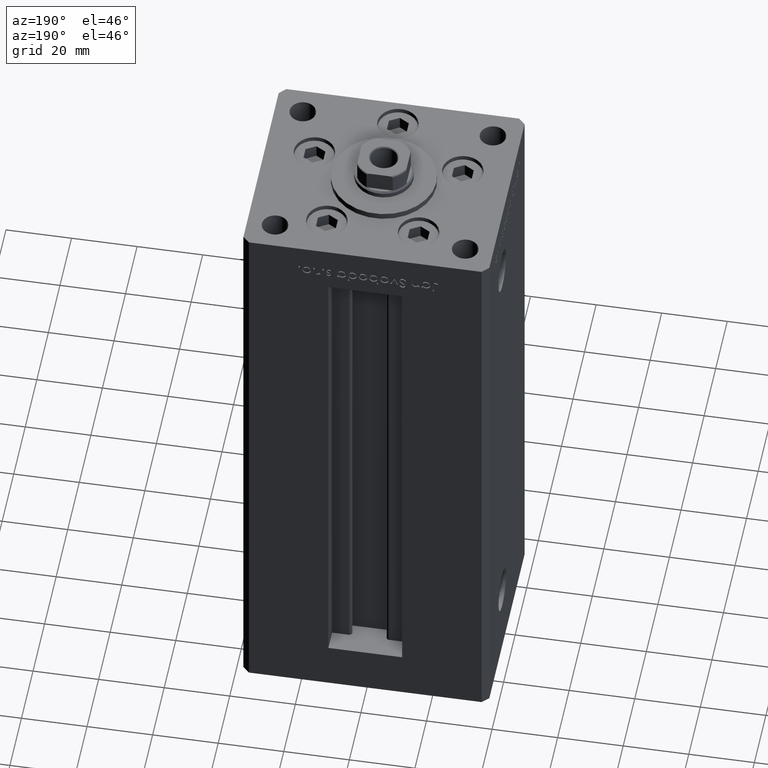
[diagram: clean part render]
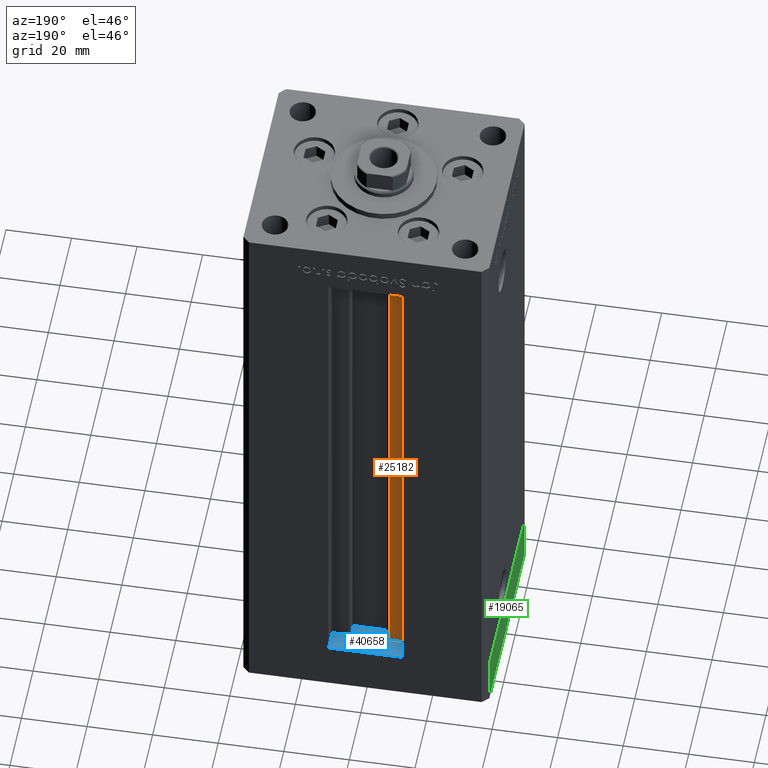
[diagram: same view with three faces highlighted in distinct colors, each labeled with its STEP entity id]
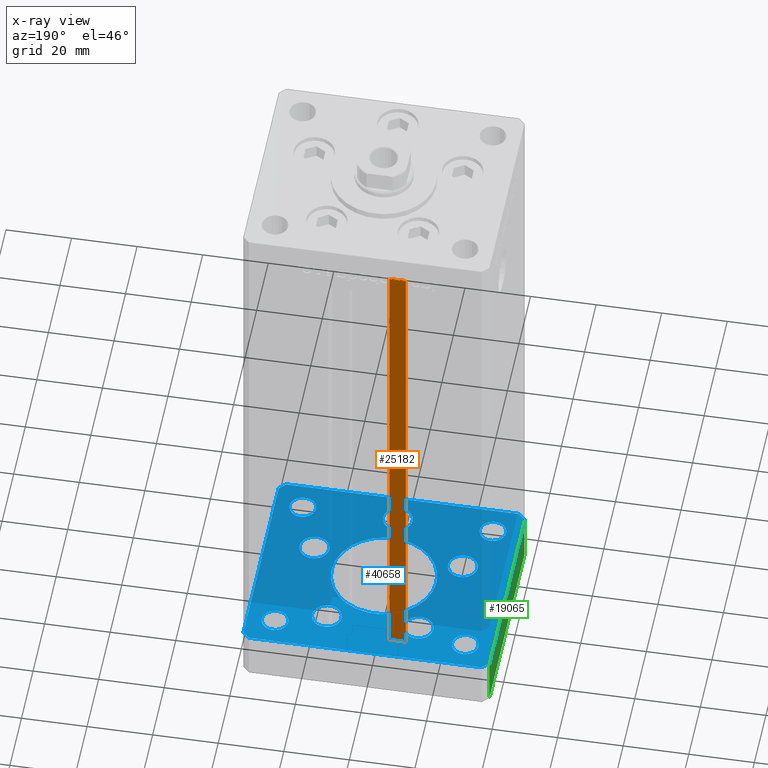
[diagram: x-ray of the same camera — body ghosted, the three highlighted faces saturated]
A machine part, auxiliary view with three faces highlighted in distinct colors.
The next image is the same camera in x-ray (body ghosted, the three faces saturated) — at least one of them is partly hidden behind the body in this view.
Their STEP definitions:

[orange] entity #25182 — the highlighted planar face has unit normal (0, -1, 0).
#5106 = EDGE_LOOP ( 'NONE', ( #14777, #24725, #35693, #45354 ) ) ;
#5426 = DIRECTION ( 'NONE',  ( -0.000000000000000000, -0.000000000000000000, 1.000000000000000000 ) ) ;
#5840 = CARTESIAN_POINT ( 'NONE',  ( -6.183333333334001480, 25.99999999999999289, 0.000000000000000000 ) ) ;
#6343 = DIRECTION ( 'NONE',  ( 0.000000000000000000, 0.000000000000000000, -1.000000000000000000 ) ) ;
#7485 = EDGE_CURVE ( 'NONE', #26500, #43193, #49454, .T. ) ;
#9036 = DIRECTION ( 'NONE',  ( 1.000000000000000000, -0.000000000000000000, -0.000000000000000000 ) ) ;
#9196 = AXIS2_PLACEMENT_3D ( 'NONE', #25354, #34048, #6343 ) ;
#13466 = LINE ( 'NONE', #13727, #15814 ) ;
#13727 = CARTESIAN_POINT ( 'NONE',  ( -11.25000000000000178, 25.99999999999999289, 0.000000000000000000 ) ) ;
#14258 = PLANE ( 'NONE',  #9196 ) ;
#14777 = ORIENTED_EDGE ( 'NONE', *, *, #7485, .F. ) ;
#15207 = VECTOR ( 'NONE', #29263, 1000.000000000000000 ) ;
#15814 = VECTOR ( 'NONE', #29812, 1000.000000000000000 ) ;
#17285 = EDGE_CURVE ( 'NONE', #45695, #26500, #49361, .T. ) ;
#21149 = EDGE_CURVE ( 'NONE', #45695, #21356, #13466, .T. ) ;
#21356 = VERTEX_POINT ( 'NONE', #44806 ) ;
#24725 = ORIENTED_EDGE ( 'NONE', *, *, #17285, .F. ) ;
#25182 = ADVANCED_FACE ( 'NONE', ( #50369 ), #14258, .F. ) ;
#25354 = CARTESIAN_POINT ( 'NONE',  ( -6.183333333334001480, 25.99999999999999289, 0.000000000000000000 ) ) ;
#26500 = VERTEX_POINT ( 'NONE', #42934 ) ;
#29263 = DIRECTION ( 'NONE',  ( -1.000000000000000000, 0.000000000000000000, 0.000000000000000000 ) ) ;
#29513 = CARTESIAN_POINT ( 'NONE',  ( 0.000000000000000000, 25.99999999999999289, 156.0000000000000000 ) ) ;
#29812 = DIRECTION ( 'NONE',  ( -0.000000000000000000, -0.000000000000000000, 1.000000000000000000 ) ) ;
#30022 = LINE ( 'NONE', #29513, #15207 ) ;
#33237 = CARTESIAN_POINT ( 'NONE',  ( -6.183333333334001480, 25.99999999999999289, 156.0000000000000000 ) ) ;
#34048 = DIRECTION ( 'NONE',  ( 0.000000000000000000, -1.000000000000000000, -0.000000000000000000 ) ) ;
#35693 = ORIENTED_EDGE ( 'NONE', *, *, #21149, .T. ) ;
#39975 = VECTOR ( 'NONE', #5426, 1000.000000000000000 ) ;
#41789 = VECTOR ( 'NONE', #9036, 1000.000000000000000 ) ;
#42391 = EDGE_CURVE ( 'NONE', #43193, #21356, #30022, .T. ) ;
#42934 = CARTESIAN_POINT ( 'NONE',  ( -6.183333333334001480, 25.99999999999999289, 0.000000000000000000 ) ) ;
#43193 = VERTEX_POINT ( 'NONE', #33237 ) ;
#44806 = CARTESIAN_POINT ( 'NONE',  ( -11.25000000000000178, 25.99999999999999289, 156.0000000000000000 ) ) ;
#45006 = CARTESIAN_POINT ( 'NONE',  ( -6.183333333334001480, 25.99999999999999289, 0.000000000000000000 ) ) ;
#45354 = ORIENTED_EDGE ( 'NONE', *, *, #42391, .F. ) ;
#45695 = VERTEX_POINT ( 'NONE', #47043 ) ;
#47043 = CARTESIAN_POINT ( 'NONE',  ( -11.25000000000000178, 25.99999999999999289, 0.000000000000000000 ) ) ;
#49361 = LINE ( 'NONE', #5840, #41789 ) ;
#49454 = LINE ( 'NONE', #45006, #39975 ) ;
#50369 = FACE_OUTER_BOUND ( 'NONE', #5106, .T. ) ;

[blue] entity #40658 — the highlighted planar face has unit normal (0, 0, -1).
#276 = EDGE_CURVE ( 'NONE', #46575, #9885, #45403, .T. ) ;
#286 = EDGE_CURVE ( 'NONE', #10816, #49239, #37813, .T. ) ;
#456 = DIRECTION ( 'NONE',  ( 0.000000000000000000, 0.000000000000000000, 1.000000000000000000 ) ) ;
#1019 = EDGE_CURVE ( 'NONE', #20562, #4074, #32792, .T. ) ;
#1669 = LINE ( 'NONE', #5895, #37985 ) ;
#1836 = EDGE_CURVE ( 'NONE', #51229, #4785, #6071, .T. ) ;
#2183 = CARTESIAN_POINT ( 'NONE',  ( -4.499999999999999112, -24.00000000000000000, -15.00000000000000000 ) ) ;
#2279 = CARTESIAN_POINT ( 'NONE',  ( -22.62741699796951877, -8.000000000000005329, -15.00000000000000000 ) ) ;
#2450 = DIRECTION ( 'NONE',  ( -1.478780668045802821E-15, 1.000000000000000000, 0.000000000000000000 ) ) ;
#2900 = CIRCLE ( 'NONE', #44208, 4.499999999999997335 ) ;
#2956 = EDGE_CURVE ( 'NONE', #46619, #35711, #40126, .T. ) ;
#3077 = DIRECTION ( 'NONE',  ( -0.000000000000000000, -0.000000000000000000, -1.000000000000000000 ) ) ;
#3419 = EDGE_LOOP ( 'NONE', ( #6296, #50874 ) ) ;
#3464 = CIRCLE ( 'NONE', #34644, 4.000000000000003553 ) ;
#3857 = CARTESIAN_POINT ( 'NONE',  ( 13.99106857963322348, 19.50000000000000000, -15.00000000000000000 ) ) ;
#4074 = VERTEX_POINT ( 'NONE', #2183 ) ;
#4252 = ORIENTED_EDGE ( 'NONE', *, *, #46514, .T. ) ;
#4703 = CARTESIAN_POINT ( 'NONE',  ( 2.939152317953647500E-15, -24.00000000000000000, -15.00000000000000000 ) ) ;
#4785 = VERTEX_POINT ( 'NONE', #35226 ) ;
#5116 = AXIS2_PLACEMENT_3D ( 'NONE', #28467, #36645, #12123 ) ;
#5215 = CARTESIAN_POINT ( 'NONE',  ( 33.00000000000001421, -23.99999999999999289, -15.00000000000000000 ) ) ;
#5248 = DIRECTION ( 'NONE',  ( 0.7071067811865474617, -0.7071067811865474617, 0.000000000000000000 ) ) ;
#5583 = DIRECTION ( 'NONE',  ( 0.000000000000000000, -0.000000000000000000, -1.000000000000000000 ) ) ;
#5734 = DIRECTION ( 'NONE',  ( 0.000000000000000000, -0.000000000000000000, -1.000000000000000000 ) ) ;
#5812 = EDGE_LOOP ( 'NONE', ( #11159, #7237 ) ) ;
#5819 = EDGE_CURVE ( 'NONE', #19884, #30599, #45443, .T. ) ;
#5895 = CARTESIAN_POINT ( 'NONE',  ( 37.50000000000001421, -30.50000000000000711, -15.00000000000000000 ) ) ;
#6071 = LINE ( 'NONE', #29111, #49629 ) ;
#6254 = EDGE_CURVE ( 'NONE', #32983, #33681, #22936, .T. ) ;
#6296 = ORIENTED_EDGE ( 'NONE', *, *, #276, .F. ) ;
#6477 = ORIENTED_EDGE ( 'NONE', *, *, #43833, .F. ) ;
#6693 = CIRCLE ( 'NONE', #21877, 4.500000000000000888 ) ;
#6857 = VERTEX_POINT ( 'NONE', #19043 ) ;
#6898 = VECTOR ( 'NONE', #14416, 999.9999999999998863 ) ;
#6981 = FACE_BOUND ( 'NONE', #14599, .T. ) ;
#7030 = DIRECTION ( 'NONE',  ( 0.000000000000000000, 0.000000000000000000, 1.000000000000000000 ) ) ;
#7237 = ORIENTED_EDGE ( 'NONE', *, *, #32230, .F. ) ;
#7311 = VERTEX_POINT ( 'NONE', #8675 ) ;
#7318 = CARTESIAN_POINT ( 'NONE',  ( 29.00000000000001066, -23.99999999999999289, -15.00000000000000000 ) ) ;
#7524 = CARTESIAN_POINT ( 'NONE',  ( -35.50000000000002842, 32.49999999999999289, -15.00000000000000000 ) ) ;
#7712 = CARTESIAN_POINT ( 'NONE',  ( 18.49106857963322881, 19.50000000000000000, -15.00000000000000000 ) ) ;
#7759 = CIRCLE ( 'NONE', #10281, 3.999999999999996447 ) ;
#8069 = DIRECTION ( 'NONE',  ( 1.000000000000000000, 9.773090005503140331E-17, 0.000000000000000000 ) ) ;
#8079 = EDGE_CURVE ( 'NONE', #40268, #24592, #2900, .T. ) ;
#8395 = DIRECTION ( 'NONE',  ( 0.000000000000000000, -0.000000000000000000, -1.000000000000000000 ) ) ;
#8495 = EDGE_LOOP ( 'NONE', ( #17650, #50814 ) ) ;
#8520 = EDGE_CURVE ( 'NONE', #46261, #6857, #31593, .T. ) ;
#8544 = AXIS2_PLACEMENT_3D ( 'NONE', #7318, #19714, #15497 ) ;
#8675 = CARTESIAN_POINT ( 'NONE',  ( 18.12741699796951877, -8.000000000000000000, -15.00000000000000000 ) ) ;
#8922 = DIRECTION ( 'NONE',  ( 1.000000000000000000, 0.000000000000000000, 0.000000000000000000 ) ) ;
#9151 = CARTESIAN_POINT ( 'NONE',  ( 27.12741699796952233, -8.000000000000000000, -15.00000000000000000 ) ) ;
#9885 = VERTEX_POINT ( 'NONE', #15253 ) ;
#10083 = CIRCLE ( 'NONE', #42120, 4.499999999999999112 ) ;
#10281 = AXIS2_PLACEMENT_3D ( 'NONE', #15496, #28152, #35805 ) ;
#10816 = VERTEX_POINT ( 'NONE', #39576 ) ;
#11009 = EDGE_CURVE ( 'NONE', #14799, #26779, #45950, .T. ) ;
#11159 = ORIENTED_EDGE ( 'NONE', *, *, #39449, .F. ) ;
#11360 = ORIENTED_EDGE ( 'NONE', *, *, #12221, .F. ) ;
#11664 = CARTESIAN_POINT ( 'NONE',  ( -35.49999999999998579, -32.50000000000001421, -15.00000000000000000 ) ) ;
#11670 = ORIENTED_EDGE ( 'NONE', *, *, #5819, .F. ) ;
#11695 = AXIS2_PLACEMENT_3D ( 'NONE', #32922, #456, #16570 ) ;
#11709 = FACE_BOUND ( 'NONE', #47471, .T. ) ;
#12123 = DIRECTION ( 'NONE',  ( -1.000000000000000000, 0.000000000000000000, 0.000000000000000000 ) ) ;
#12221 = EDGE_CURVE ( 'NONE', #6857, #46261, #33379, .T. ) ;
#12327 = ORIENTED_EDGE ( 'NONE', *, *, #1836, .F. ) ;
#12772 = ORIENTED_EDGE ( 'NONE', *, *, #24463, .F. ) ;
#12907 = CARTESIAN_POINT ( 'NONE',  ( -37.49999999999998579, -30.50000000000001421, -15.00000000000000000 ) ) ;
#13104 = VERTEX_POINT ( 'NONE', #9151 ) ;
#13778 = CARTESIAN_POINT ( 'NONE',  ( 37.49999999999992184, 30.50000000000001066, -15.00000000000000000 ) ) ;
#14394 = ORIENTED_EDGE ( 'NONE', *, *, #38030, .F. ) ;
#14395 = CARTESIAN_POINT ( 'NONE',  ( -33.00000000000000711, 24.00000000000000711, -15.00000000000000000 ) ) ;
#14416 = DIRECTION ( 'NONE',  ( -0.7071067811865482389, 0.7071067811865469066, 0.000000000000000000 ) ) ;
#14426 = DIRECTION ( 'NONE',  ( 1.000000000000000000, 0.000000000000000000, 0.000000000000000000 ) ) ;
#14463 = CARTESIAN_POINT ( 'NONE',  ( 22.62741699796951877, -8.000000000000000000, -15.00000000000000000 ) ) ;
#14599 = EDGE_LOOP ( 'NONE', ( #44219, #32704 ) ) ;
#14616 = CARTESIAN_POINT ( 'NONE',  ( -35.50000000000002842, 32.49999999999999289, -15.00000000000000000 ) ) ;
#14799 = VERTEX_POINT ( 'NONE', #41094 ) ;
#14871 = DIRECTION ( 'NONE',  ( -0.7071067811865426878, -0.7071067811865524577, 0.000000000000000000 ) ) ;
#14887 = FACE_OUTER_BOUND ( 'NONE', #50175, .T. ) ;
#14937 = CARTESIAN_POINT ( 'NONE',  ( -29.00000000000001066, 24.00000000000000711, -15.00000000000000000 ) ) ;
#15253 = CARTESIAN_POINT ( 'NONE',  ( -16.00000000000000000, 1.959434878635764737E-15, -15.00000000000000000 ) ) ;
#15488 = EDGE_CURVE ( 'NONE', #9885, #46575, #22521, .T. ) ;
#15496 = CARTESIAN_POINT ( 'NONE',  ( -29.00000000000001066, 24.00000000000000711, -15.00000000000000000 ) ) ;
#15497 = DIRECTION ( 'NONE',  ( -1.000000000000000000, 0.000000000000000000, 0.000000000000000000 ) ) ;
#15754 = CARTESIAN_POINT ( 'NONE',  ( 35.49999999999992184, 32.50000000000000711, -15.00000000000000000 ) ) ;
#16430 = EDGE_CURVE ( 'NONE', #24592, #40268, #48522, .T. ) ;
#16437 = AXIS2_PLACEMENT_3D ( 'NONE', #33040, #5583, #38008 ) ;
#16532 = ORIENTED_EDGE ( 'NONE', *, *, #34823, .F. ) ;
#16533 = AXIS2_PLACEMENT_3D ( 'NONE', #42931, #29775, #25807 ) ;
#16570 = DIRECTION ( 'NONE',  ( 1.000000000000000000, 0.000000000000000000, 0.000000000000000000 ) ) ;
#17053 = EDGE_CURVE ( 'NONE', #7311, #13104, #39252, .T. ) ;
#17114 = CARTESIAN_POINT ( 'NONE',  ( 0.000000000000000000, 0.000000000000000000, -15.00000000000000000 ) ) ;
#17650 = ORIENTED_EDGE ( 'NONE', *, *, #16430, .F. ) ;
#17884 = CARTESIAN_POINT ( 'NONE',  ( -37.49999999999998579, -30.50000000000001421, -15.00000000000000000 ) ) ;
#18853 = FACE_BOUND ( 'NONE', #3419, .T. ) ;
#19043 = CARTESIAN_POINT ( 'NONE',  ( 9.491068579633218150, 19.50000000000000000, -15.00000000000000000 ) ) ;
#19254 = VERTEX_POINT ( 'NONE', #13778 ) ;
#19498 = EDGE_LOOP ( 'NONE', ( #37532, #30746 ) ) ;
#19553 = AXIS2_PLACEMENT_3D ( 'NONE', #28772, #41684, #44866 ) ;
#19714 = DIRECTION ( 'NONE',  ( -0.000000000000000000, -0.000000000000000000, -1.000000000000000000 ) ) ;
#19845 = CARTESIAN_POINT ( 'NONE',  ( 29.00000000000001066, -23.99999999999999289, -15.00000000000000000 ) ) ;
#19884 = VERTEX_POINT ( 'NONE', #51766 ) ;
#20222 = DIRECTION ( 'NONE',  ( 0.000000000000000000, -0.000000000000000000, -1.000000000000000000 ) ) ;
#20234 = CARTESIAN_POINT ( 'NONE',  ( 16.00000000000000000, 0.000000000000000000, -15.00000000000000000 ) ) ;
#20562 = VERTEX_POINT ( 'NONE', #44531 ) ;
#21079 = LINE ( 'NONE', #12907, #29607 ) ;
#21803 = VECTOR ( 'NONE', #14871, 1000.000000000000000 ) ;
#21877 = AXIS2_PLACEMENT_3D ( 'NONE', #14463, #35551, #51610 ) ;
#21951 = CIRCLE ( 'NONE', #5116, 3.999999999999996447 ) ;
#22084 = DIRECTION ( 'NONE',  ( 1.000000000000000000, 0.000000000000000000, 0.000000000000000000 ) ) ;
#22521 = CIRCLE ( 'NONE', #36833, 16.00000000000000000 ) ;
#22615 = DIRECTION ( 'NONE',  ( 0.000000000000000000, -0.000000000000000000, -1.000000000000000000 ) ) ;
#22936 = CIRCLE ( 'NONE', #19553, 4.499999999999999112 ) ;
#23133 = CARTESIAN_POINT ( 'NONE',  ( -29.00000000000001066, -23.99999999999999289, -15.00000000000000000 ) ) ;
#23323 = FACE_BOUND ( 'NONE', #41918, .T. ) ;
#23367 = LINE ( 'NONE', #51295, #6898 ) ;
#23625 = LINE ( 'NONE', #36286, #36360 ) ;
#23705 = CIRCLE ( 'NONE', #8544, 4.000000000000003553 ) ;
#23841 = FACE_BOUND ( 'NONE', #27367, .T. ) ;
#23909 = DIRECTION ( 'NONE',  ( 1.000000000000000000, 0.000000000000000000, 0.000000000000000000 ) ) ;
#23997 = VERTEX_POINT ( 'NONE', #41612 ) ;
#24289 = ORIENTED_EDGE ( 'NONE', *, *, #2956, .F. ) ;
#24293 = CARTESIAN_POINT ( 'NONE',  ( -18.49106857963322526, 19.49999999999999645, -15.00000000000000000 ) ) ;
#24463 = EDGE_CURVE ( 'NONE', #35711, #19884, #51502, .T. ) ;
#24592 = VERTEX_POINT ( 'NONE', #45337 ) ;
#24836 = DIRECTION ( 'NONE',  ( 1.000000000000000000, 0.000000000000000000, 0.000000000000000000 ) ) ;
#25405 = ORIENTED_EDGE ( 'NONE', *, *, #41745, .F. ) ;
#25457 = CIRCLE ( 'NONE', #40635, 4.500000000000001776 ) ;
#25646 = CARTESIAN_POINT ( 'NONE',  ( -37.50000000000001421, 30.49999999999998579, -15.00000000000000000 ) ) ;
#25807 = DIRECTION ( 'NONE',  ( 1.000000000000000000, 0.000000000000000000, 0.000000000000000000 ) ) ;
#26313 = DIRECTION ( 'NONE',  ( 1.000000000000000000, 0.000000000000000000, 0.000000000000000000 ) ) ;
#26479 = EDGE_CURVE ( 'NONE', #13104, #7311, #6693, .T. ) ;
#26779 = VERTEX_POINT ( 'NONE', #14395 ) ;
#26882 = DIRECTION ( 'NONE',  ( 0.7071067811865487940, 0.7071067811865463515, 0.000000000000000000 ) ) ;
#27010 = FACE_BOUND ( 'NONE', #19498, .T. ) ;
#27281 = FACE_BOUND ( 'NONE', #41536, .T. ) ;
#27367 = EDGE_LOOP ( 'NONE', ( #42848, #4252 ) ) ;
#27388 = EDGE_CURVE ( 'NONE', #33681, #32983, #10083, .T. ) ;
#27597 = CARTESIAN_POINT ( 'NONE',  ( -9.491068579633228808, 19.49999999999999645, -15.00000000000000000 ) ) ;
#28152 = DIRECTION ( 'NONE',  ( 0.000000000000000000, 0.000000000000000000, 1.000000000000000000 ) ) ;
#28190 = DIRECTION ( 'NONE',  ( 1.000000000000000000, 0.000000000000000000, 0.000000000000000000 ) ) ;
#28317 = AXIS2_PLACEMENT_3D ( 'NONE', #14937, #7030, #22084 ) ;
#28457 = DIRECTION ( 'NONE',  ( 0.000000000000000000, -0.000000000000000000, -1.000000000000000000 ) ) ;
#28467 = CARTESIAN_POINT ( 'NONE',  ( -29.00000000000001066, -23.99999999999999289, -15.00000000000000000 ) ) ;
#28610 = VERTEX_POINT ( 'NONE', #51912 ) ;
#28772 = CARTESIAN_POINT ( 'NONE',  ( -13.99106857963322703, 19.49999999999999645, -15.00000000000000000 ) ) ;
#28806 = CARTESIAN_POINT ( 'NONE',  ( 2.939152317953647500E-15, -24.00000000000000000, -15.00000000000000000 ) ) ;
#29111 = CARTESIAN_POINT ( 'NONE',  ( 35.50000000000000711, -32.50000000000000711, -15.00000000000000000 ) ) ;
#29508 = CARTESIAN_POINT ( 'NONE',  ( -33.00000000000000711, -23.99999999999999289, -15.00000000000000000 ) ) ;
#29607 = VECTOR ( 'NONE', #5248, 1000.000000000000114 ) ;
#29775 = DIRECTION ( 'NONE',  ( 0.000000000000000000, -0.000000000000000000, -1.000000000000000000 ) ) ;
#29976 = ORIENTED_EDGE ( 'NONE', *, *, #1019, .F. ) ;
#30297 = DIRECTION ( 'NONE',  ( 1.000000000000000000, 0.000000000000000000, 0.000000000000000000 ) ) ;
#30565 = CARTESIAN_POINT ( 'NONE',  ( 29.00000000000001066, 24.00000000000000711, -15.00000000000000000 ) ) ;
#30599 = VERTEX_POINT ( 'NONE', #17884 ) ;
#30746 = ORIENTED_EDGE ( 'NONE', *, *, #27388, .F. ) ;
#30838 = AXIS2_PLACEMENT_3D ( 'NONE', #3857, #20222, #23909 ) ;
#31593 = CIRCLE ( 'NONE', #16437, 4.500000000000005329 ) ;
#32018 = DIRECTION ( 'NONE',  ( 1.000000000000000000, 0.000000000000000000, 0.000000000000000000 ) ) ;
#32099 = ORIENTED_EDGE ( 'NONE', *, *, #49007, .F. ) ;
#32230 = EDGE_CURVE ( 'NONE', #23997, #36917, #23705, .T. ) ;
#32524 = DIRECTION ( 'NONE',  ( 4.550094363217855288E-16, -1.000000000000000000, 0.000000000000000000 ) ) ;
#32704 = ORIENTED_EDGE ( 'NONE', *, *, #17053, .F. ) ;
#32792 = CIRCLE ( 'NONE', #46280, 4.500000000000001776 ) ;
#32922 = CARTESIAN_POINT ( 'NONE',  ( 29.00000000000001066, 24.00000000000000711, -15.00000000000000000 ) ) ;
#32983 = VERTEX_POINT ( 'NONE', #27597 ) ;
#33040 = CARTESIAN_POINT ( 'NONE',  ( 13.99106857963322348, 19.50000000000000000, -15.00000000000000000 ) ) ;
#33338 = ORIENTED_EDGE ( 'NONE', *, *, #44138, .T. ) ;
#33379 = CIRCLE ( 'NONE', #30838, 4.500000000000005329 ) ;
#33681 = VERTEX_POINT ( 'NONE', #24293 ) ;
#33690 = CARTESIAN_POINT ( 'NONE',  ( 0.000000000000000000, 0.000000000000000000, -15.00000000000000000 ) ) ;
#34644 = AXIS2_PLACEMENT_3D ( 'NONE', #30565, #38727, #30297 ) ;
#34741 = ORIENTED_EDGE ( 'NONE', *, *, #46251, .F. ) ;
#34823 = EDGE_CURVE ( 'NONE', #28610, #34911, #21951, .T. ) ;
#34911 = VERTEX_POINT ( 'NONE', #29508 ) ;
#35226 = CARTESIAN_POINT ( 'NONE',  ( 37.50000000000001421, -30.50000000000000711, -15.00000000000000000 ) ) ;
#35264 = CARTESIAN_POINT ( 'NONE',  ( 33.00000000000001421, 24.00000000000000711, -15.00000000000000000 ) ) ;
#35266 = DIRECTION ( 'NONE',  ( -1.000000000000000000, 0.000000000000000000, 0.000000000000000000 ) ) ;
#35380 = VECTOR ( 'NONE', #36182, 1000.000000000000000 ) ;
#35551 = DIRECTION ( 'NONE',  ( 0.000000000000000000, -0.000000000000000000, -1.000000000000000000 ) ) ;
#35711 = VERTEX_POINT ( 'NONE', #7524 ) ;
#35805 = DIRECTION ( 'NONE',  ( 1.000000000000000000, 0.000000000000000000, 0.000000000000000000 ) ) ;
#35939 = DIRECTION ( 'NONE',  ( -1.000000000000000000, 0.000000000000000000, 0.000000000000000000 ) ) ;
#35980 = FACE_BOUND ( 'NONE', #8495, .T. ) ;
#36182 = DIRECTION ( 'NONE',  ( -1.000000000000000000, -1.954618001100629052E-16, 0.000000000000000000 ) ) ;
#36286 = CARTESIAN_POINT ( 'NONE',  ( -35.49999999999998579, -32.50000000000001421, -15.00000000000000000 ) ) ;
#36360 = VECTOR ( 'NONE', #8069, 1000.000000000000000 ) ;
#36621 = DIRECTION ( 'NONE',  ( 1.000000000000000000, 0.000000000000000000, 0.000000000000000000 ) ) ;
#36645 = DIRECTION ( 'NONE',  ( -0.000000000000000000, -0.000000000000000000, -1.000000000000000000 ) ) ;
#36833 = AXIS2_PLACEMENT_3D ( 'NONE', #17114, #48467, #36621 ) ;
#36917 = VERTEX_POINT ( 'NONE', #5215 ) ;
#37263 = VECTOR ( 'NONE', #32524, 1000.000000000000000 ) ;
#37532 = ORIENTED_EDGE ( 'NONE', *, *, #6254, .F. ) ;
#37813 = CIRCLE ( 'NONE', #11695, 4.000000000000003553 ) ;
#37985 = VECTOR ( 'NONE', #2450, 1000.000000000000000 ) ;
#38008 = DIRECTION ( 'NONE',  ( 1.000000000000000000, 0.000000000000000000, 0.000000000000000000 ) ) ;
#38030 = EDGE_CURVE ( 'NONE', #49464, #51229, #23625, .T. ) ;
#38077 = CARTESIAN_POINT ( 'NONE',  ( 35.50000000000000711, -32.50000000000000711, -15.00000000000000000 ) ) ;
#38082 = AXIS2_PLACEMENT_3D ( 'NONE', #19845, #39876, #35939 ) ;
#38259 = CIRCLE ( 'NONE', #42483, 3.999999999999996447 ) ;
#38727 = DIRECTION ( 'NONE',  ( 0.000000000000000000, 0.000000000000000000, 1.000000000000000000 ) ) ;
#39252 = CIRCLE ( 'NONE', #16533, 4.500000000000000888 ) ;
#39367 = CARTESIAN_POINT ( 'NONE',  ( -27.12741699796951877, -8.000000000000005329, -15.00000000000000000 ) ) ;
#39449 = EDGE_CURVE ( 'NONE', #36917, #23997, #39731, .T. ) ;
#39576 = CARTESIAN_POINT ( 'NONE',  ( 25.00000000000000711, 24.00000000000000711, -15.00000000000000000 ) ) ;
#39731 = CIRCLE ( 'NONE', #38082, 4.000000000000003553 ) ;
#39876 = DIRECTION ( 'NONE',  ( -0.000000000000000000, -0.000000000000000000, -1.000000000000000000 ) ) ;
#39919 = PLANE ( 'NONE',  #48211 ) ;
#40126 = LINE ( 'NONE', #40389, #35380 ) ;
#40268 = VERTEX_POINT ( 'NONE', #39367 ) ;
#40389 = CARTESIAN_POINT ( 'NONE',  ( 35.49999999999992184, 32.50000000000000711, -15.00000000000000000 ) ) ;
#40635 = AXIS2_PLACEMENT_3D ( 'NONE', #28806, #48040, #24836 ) ;
#40658 = ADVANCED_FACE ( 'NONE', ( #18853, #35980, #23323, #6981, #11709, #27010, #50994, #23841, #14887, #51779, #27281 ), #39919, .F. ) ;
#40969 = AXIS2_PLACEMENT_3D ( 'NONE', #2279, #5734, #14426 ) ;
#41094 = CARTESIAN_POINT ( 'NONE',  ( -25.00000000000001421, 24.00000000000000711, -15.00000000000000000 ) ) ;
#41536 = EDGE_LOOP ( 'NONE', ( #16532, #25405 ) ) ;
#41612 = CARTESIAN_POINT ( 'NONE',  ( 25.00000000000000711, -23.99999999999999289, -15.00000000000000000 ) ) ;
#41617 = DIRECTION ( 'NONE',  ( 0.000000000000000000, -0.000000000000000000, -1.000000000000000000 ) ) ;
#41684 = DIRECTION ( 'NONE',  ( 0.000000000000000000, -0.000000000000000000, -1.000000000000000000 ) ) ;
#41745 = EDGE_CURVE ( 'NONE', #34911, #28610, #38259, .T. ) ;
#41918 = EDGE_LOOP ( 'NONE', ( #29976, #34741 ) ) ;
#42120 = AXIS2_PLACEMENT_3D ( 'NONE', #48482, #28457, #51655 ) ;
#42483 = AXIS2_PLACEMENT_3D ( 'NONE', #23133, #3077, #35266 ) ;
#42848 = ORIENTED_EDGE ( 'NONE', *, *, #11009, .T. ) ;
#42931 = CARTESIAN_POINT ( 'NONE',  ( 22.62741699796951877, -8.000000000000000000, -15.00000000000000000 ) ) ;
#43110 = DIRECTION ( 'NONE',  ( -0.000000000000000000, 0.000000000000000000, 1.000000000000000000 ) ) ;
#43833 = EDGE_CURVE ( 'NONE', #4785, #19254, #1669, .T. ) ;
#44138 = EDGE_CURVE ( 'NONE', #49239, #10816, #3464, .T. ) ;
#44208 = AXIS2_PLACEMENT_3D ( 'NONE', #46616, #22615, #26313 ) ;
#44219 = ORIENTED_EDGE ( 'NONE', *, *, #26479, .F. ) ;
#44531 = CARTESIAN_POINT ( 'NONE',  ( 4.500000000000003553, -24.00000000000000000, -15.00000000000000000 ) ) ;
#44550 = EDGE_LOOP ( 'NONE', ( #33338, #47646 ) ) ;
#44866 = DIRECTION ( 'NONE',  ( 1.000000000000000000, 0.000000000000000000, 0.000000000000000000 ) ) ;
#45337 = CARTESIAN_POINT ( 'NONE',  ( -18.12741699796952233, -8.000000000000005329, -15.00000000000000000 ) ) ;
#45403 = CIRCLE ( 'NONE', #49588, 16.00000000000000000 ) ;
#45443 = LINE ( 'NONE', #25646, #37263 ) ;
#45932 = ORIENTED_EDGE ( 'NONE', *, *, #48755, .F. ) ;
#45950 = CIRCLE ( 'NONE', #28317, 3.999999999999996447 ) ;
#46251 = EDGE_CURVE ( 'NONE', #4074, #20562, #25457, .T. ) ;
#46261 = VERTEX_POINT ( 'NONE', #7712 ) ;
#46280 = AXIS2_PLACEMENT_3D ( 'NONE', #4703, #8395, #28190 ) ;
#46514 = EDGE_CURVE ( 'NONE', #26779, #14799, #7759, .T. ) ;
#46575 = VERTEX_POINT ( 'NONE', #20234 ) ;
#46616 = CARTESIAN_POINT ( 'NONE',  ( -22.62741699796951877, -8.000000000000005329, -15.00000000000000000 ) ) ;
#46619 = VERTEX_POINT ( 'NONE', #15754 ) ;
#47471 = EDGE_LOOP ( 'NONE', ( #51077, #11360 ) ) ;
#47646 = ORIENTED_EDGE ( 'NONE', *, *, #286, .T. ) ;
#48040 = DIRECTION ( 'NONE',  ( 0.000000000000000000, -0.000000000000000000, -1.000000000000000000 ) ) ;
#48211 = AXIS2_PLACEMENT_3D ( 'NONE', #51519, #43110, #32018 ) ;
#48467 = DIRECTION ( 'NONE',  ( 0.000000000000000000, -0.000000000000000000, -1.000000000000000000 ) ) ;
#48482 = CARTESIAN_POINT ( 'NONE',  ( -13.99106857963322703, 19.49999999999999645, -15.00000000000000000 ) ) ;
#48522 = CIRCLE ( 'NONE', #40969, 4.499999999999997335 ) ;
#48755 = EDGE_CURVE ( 'NONE', #19254, #46619, #23367, .T. ) ;
#49007 = EDGE_CURVE ( 'NONE', #30599, #49464, #21079, .T. ) ;
#49239 = VERTEX_POINT ( 'NONE', #35264 ) ;
#49464 = VERTEX_POINT ( 'NONE', #11664 ) ;
#49588 = AXIS2_PLACEMENT_3D ( 'NONE', #33690, #41617, #8922 ) ;
#49629 = VECTOR ( 'NONE', #26882, 1000.000000000000000 ) ;
#50175 = EDGE_LOOP ( 'NONE', ( #32099, #11670, #12772, #24289, #45932, #6477, #12327, #14394 ) ) ;
#50814 = ORIENTED_EDGE ( 'NONE', *, *, #8079, .F. ) ;
#50874 = ORIENTED_EDGE ( 'NONE', *, *, #15488, .F. ) ;
#50994 = FACE_BOUND ( 'NONE', #44550, .T. ) ;
#51077 = ORIENTED_EDGE ( 'NONE', *, *, #8520, .F. ) ;
#51229 = VERTEX_POINT ( 'NONE', #38077 ) ;
#51295 = CARTESIAN_POINT ( 'NONE',  ( 37.49999999999992184, 30.50000000000001066, -15.00000000000000000 ) ) ;
#51502 = LINE ( 'NONE', #14616, #21803 ) ;
#51519 = CARTESIAN_POINT ( 'NONE',  ( 0.000000000000000000, 0.000000000000000000, -15.00000000000000000 ) ) ;
#51610 = DIRECTION ( 'NONE',  ( 1.000000000000000000, 0.000000000000000000, 0.000000000000000000 ) ) ;
#51655 = DIRECTION ( 'NONE',  ( 1.000000000000000000, 0.000000000000000000, 0.000000000000000000 ) ) ;
#51766 = CARTESIAN_POINT ( 'NONE',  ( -37.50000000000001421, 30.49999999999998579, -15.00000000000000000 ) ) ;
#51779 = FACE_BOUND ( 'NONE', #5812, .T. ) ;
#51912 = CARTESIAN_POINT ( 'NONE',  ( -25.00000000000001066, -23.99999999999999289, -15.00000000000000000 ) ) ;

[green] entity #19065 — the highlighted planar face has unit normal (-1, 0, 0).
#831 = ORIENTED_EDGE ( 'NONE', *, *, #43833, .T. ) ;
#1471 = VERTEX_POINT ( 'NONE', #5922 ) ;
#1669 = LINE ( 'NONE', #5895, #37985 ) ;
#2450 = DIRECTION ( 'NONE',  ( -1.478780668045802821E-15, 1.000000000000000000, 0.000000000000000000 ) ) ;
#2660 = VECTOR ( 'NONE', #8878, 1000.000000000000000 ) ;
#4785 = VERTEX_POINT ( 'NONE', #35226 ) ;
#5895 = CARTESIAN_POINT ( 'NONE',  ( 37.50000000000001421, -30.50000000000000711, -15.00000000000000000 ) ) ;
#5912 = DIRECTION ( 'NONE',  ( 1.000000000000000000, 1.478780668045803018E-15, -0.000000000000000000 ) ) ;
#5922 = CARTESIAN_POINT ( 'NONE',  ( 37.49999999999992184, 30.50000000000001066, 0.000000000000000000 ) ) ;
#8579 = EDGE_CURVE ( 'NONE', #4785, #20671, #49612, .T. ) ;
#8878 = DIRECTION ( 'NONE',  ( 0.000000000000000000, 0.000000000000000000, 1.000000000000000000 ) ) ;
#9013 = AXIS2_PLACEMENT_3D ( 'NONE', #50454, #5912, #22011 ) ;
#10867 = ORIENTED_EDGE ( 'NONE', *, *, #38087, .T. ) ;
#12265 = LINE ( 'NONE', #16484, #22860 ) ;
#13778 = CARTESIAN_POINT ( 'NONE',  ( 37.49999999999992184, 30.50000000000001066, -15.00000000000000000 ) ) ;
#16484 = CARTESIAN_POINT ( 'NONE',  ( 37.50000000000001421, -30.50000000000000711, 0.000000000000000000 ) ) ;
#19065 = ADVANCED_FACE ( 'NONE', ( #22529 ), #45759, .T. ) ;
#19254 = VERTEX_POINT ( 'NONE', #13778 ) ;
#19944 = CARTESIAN_POINT ( 'NONE',  ( 37.50000000000001421, -30.50000000000000711, 0.000000000000000000 ) ) ;
#20671 = VERTEX_POINT ( 'NONE', #19944 ) ;
#22011 = DIRECTION ( 'NONE',  ( -1.478780668045803018E-15, 1.000000000000000000, 0.000000000000000000 ) ) ;
#22529 = FACE_OUTER_BOUND ( 'NONE', #45160, .T. ) ;
#22860 = VECTOR ( 'NONE', #28884, 1000.000000000000000 ) ;
#28884 = DIRECTION ( 'NONE',  ( -1.478780668045802821E-15, 1.000000000000000000, 0.000000000000000000 ) ) ;
#33800 = CARTESIAN_POINT ( 'NONE',  ( 37.50000000000001421, -30.50000000000000711, -15.00000000000000000 ) ) ;
#35226 = CARTESIAN_POINT ( 'NONE',  ( 37.50000000000001421, -30.50000000000000711, -15.00000000000000000 ) ) ;
#36834 = LINE ( 'NONE', #45523, #2660 ) ;
#37257 = DIRECTION ( 'NONE',  ( 0.000000000000000000, 0.000000000000000000, 1.000000000000000000 ) ) ;
#37985 = VECTOR ( 'NONE', #2450, 1000.000000000000000 ) ;
#38087 = EDGE_CURVE ( 'NONE', #19254, #1471, #36834, .T. ) ;
#43693 = EDGE_CURVE ( 'NONE', #20671, #1471, #12265, .T. ) ;
#43833 = EDGE_CURVE ( 'NONE', #4785, #19254, #1669, .T. ) ;
#45160 = EDGE_LOOP ( 'NONE', ( #49293, #51122, #831, #10867 ) ) ;
#45523 = CARTESIAN_POINT ( 'NONE',  ( 37.49999999999992184, 30.50000000000001066, -15.00000000000000000 ) ) ;
#45759 = PLANE ( 'NONE',  #9013 ) ;
#49293 = ORIENTED_EDGE ( 'NONE', *, *, #43693, .F. ) ;
#49612 = LINE ( 'NONE', #33800, #50093 ) ;
#50093 = VECTOR ( 'NONE', #37257, 1000.000000000000000 ) ;
#50454 = CARTESIAN_POINT ( 'NONE',  ( 37.50000000000001421, -30.50000000000000711, -15.00000000000000000 ) ) ;
#51122 = ORIENTED_EDGE ( 'NONE', *, *, #8579, .F. ) ;